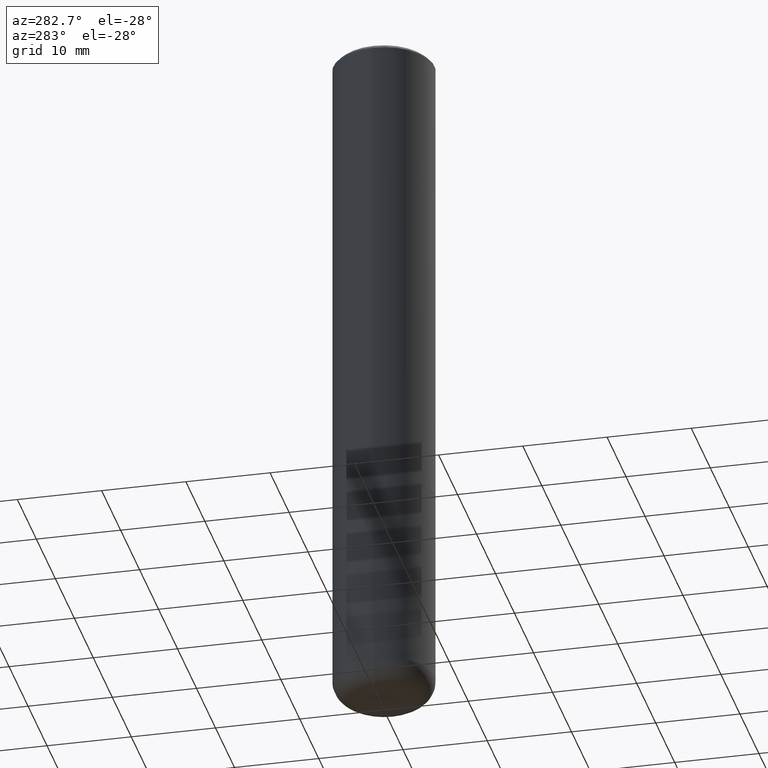
[diagram: clean part render]
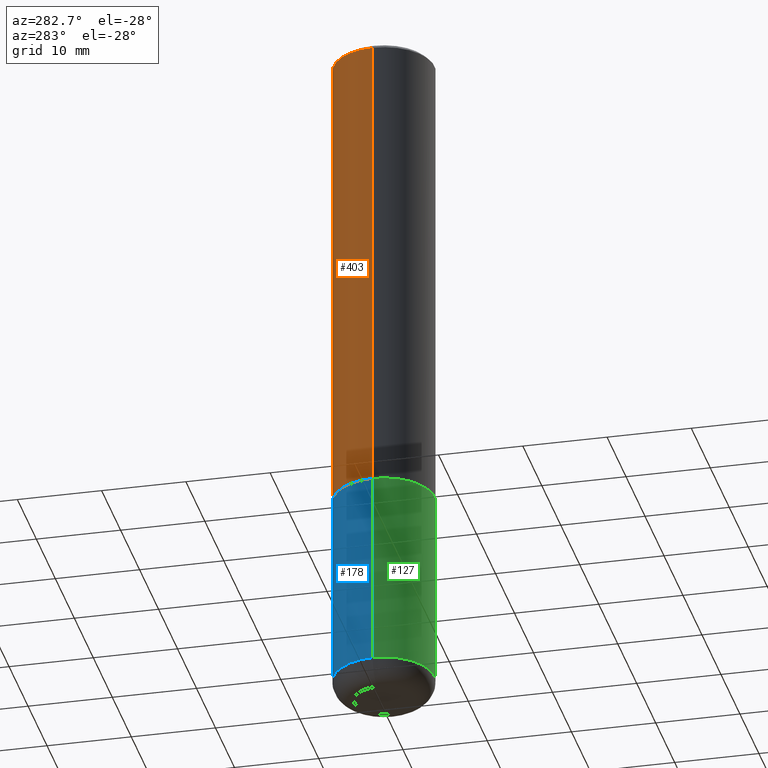
[diagram: same view with three faces highlighted in distinct colors, each labeled with its STEP entity id]
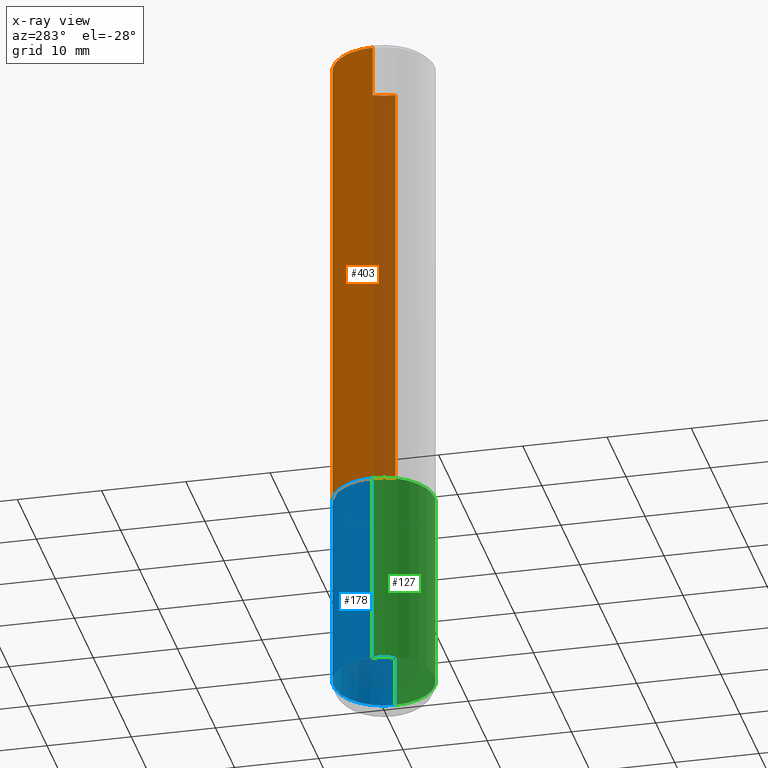
[diagram: x-ray of the same camera — body ghosted, the three highlighted faces saturated]
A machine part, auxiliary view with three faces highlighted in distinct colors.
The next image is the same camera in x-ray (body ghosted, the three faces saturated) — at least one of them is partly hidden behind the body in this view.
Their STEP definitions:

[orange] entity #403 — the highlighted cylindrical surface (partial cylindrical patch) has radius 5.9995 mm, axis along (-0, 0, 1).
#32 = LINE ( 'NONE', #94, #129 ) ;
#45 = CYLINDRICAL_SURFACE ( 'NONE', #215, 0.2362000000000001321 ) ;
#48 = VERTEX_POINT ( 'NONE', #92 ) ;
#65 = DIRECTION ( 'NONE',  ( -2.445468806185136877E-29, 3.491481338843145188E-15, 1.000000000000000000 ) ) ;
#66 = CARTESIAN_POINT ( 'NONE',  ( 0.2361999999999999933, -1.690279253850498771E-15, -0.02000000000000005246 ) ) ;
#77 = FACE_OUTER_BOUND ( 'NONE', #307, .T. ) ;
#81 = VERTEX_POINT ( 'NONE', #66 ) ;
#92 = CARTESIAN_POINT ( 'NONE',  ( -0.2361999999999999933, 1.579546157692633030E-15, -0.02000000000000005246 ) ) ;
#94 = CARTESIAN_POINT ( 'NONE',  ( 0.2362000000000001321, -1.649375784469497117E-15, 1.151752954443000789E-29 ) ) ;
#97 = EDGE_CURVE ( 'NONE', #354, #81, #32, .T. ) ;
#110 = DIRECTION ( 'NONE',  ( 1.000000000000000000, -6.982962677686266711E-15, 4.876176775795936353E-29 ) ) ;
#111 = ORIENTED_EDGE ( 'NONE', *, *, #97, .F. ) ;
#120 = VECTOR ( 'NONE', #65, 39.37007874015748143 ) ;
#128 = DIRECTION ( 'NONE',  ( -2.445468806185136877E-29, 3.491481338843145188E-15, 1.000000000000000000 ) ) ;
#129 = VECTOR ( 'NONE', #128, 39.37007874015748143 ) ;
#137 = CARTESIAN_POINT ( 'NONE',  ( 4.890937612370285420E-31, -6.982962677686308865E-17, -0.02000000000000005246 ) ) ;
#140 = EDGE_CURVE ( 'NONE', #354, #404, #273, .T. ) ;
#145 = CARTESIAN_POINT ( 'NONE',  ( -0.2362000000000002986, -2.272483767102600582E-15, -2.243100000000000094 ) ) ;
#171 = CARTESIAN_POINT ( 'NONE',  ( 0.000000000000000000, 0.000000000000000000, 0.000000000000000000 ) ) ;
#176 = ORIENTED_EDGE ( 'NONE', *, *, #203, .T. ) ;
#201 = ORIENTED_EDGE ( 'NONE', *, *, #140, .T. ) ;
#203 = EDGE_CURVE ( 'NONE', #404, #48, #414, .T. ) ;
#204 = CARTESIAN_POINT ( 'NONE',  ( 0.2362000000000002709, -9.481117575628559013E-15, -2.243100000000000094 ) ) ;
#215 = AXIS2_PLACEMENT_3D ( 'NONE', #171, #397, #110 ) ;
#242 = AXIS2_PLACEMENT_3D ( 'NONE', #137, #396, #362 ) ;
#261 = DIRECTION ( 'NONE',  ( -2.445468806185136597E-29, 3.491481338843145583E-15, 1.000000000000000000 ) ) ;
#273 = CIRCLE ( 'NONE', #328, 0.2362000000000002709 ) ;
#277 = ORIENTED_EDGE ( 'NONE', *, *, #399, .F. ) ;
#307 = EDGE_LOOP ( 'NONE', ( #201, #176, #277, #111 ) ) ;
#328 = AXIS2_PLACEMENT_3D ( 'NONE', #418, #261, #417 ) ;
#354 = VERTEX_POINT ( 'NONE', #204 ) ;
#362 = DIRECTION ( 'NONE',  ( 1.000000000000000000, -6.982962677686266711E-15, 0.000000000000000000 ) ) ;
#381 = CIRCLE ( 'NONE', #242, 0.2361999999999999933 ) ;
#385 = CARTESIAN_POINT ( 'NONE',  ( -0.2362000000000001321, 1.678301941865357577E-15, -1.161852468318209457E-29 ) ) ;
#396 = DIRECTION ( 'NONE',  ( -2.445468806185136597E-29, 3.491481338843145583E-15, 1.000000000000000000 ) ) ;
#397 = DIRECTION ( 'NONE',  ( -2.445468806185136597E-29, 3.491481338843145583E-15, 1.000000000000000000 ) ) ;
#399 = EDGE_CURVE ( 'NONE', #81, #48, #381, .T. ) ;
#403 = ADVANCED_FACE ( 'NONE', ( #77 ), #45, .T. ) ;
#404 = VERTEX_POINT ( 'NONE', #145 ) ;
#414 = LINE ( 'NONE', #385, #120 ) ;
#417 = DIRECTION ( 'NONE',  ( 1.000000000000000000, -6.982962677686269077E-15, 0.000000000000000000 ) ) ;
#418 = CARTESIAN_POINT ( 'NONE',  ( 5.485431079153880270E-29, -7.831741791159060910E-15, -2.243100000000000094 ) ) ;

[blue] entity #178 — the highlighted cylindrical surface (partial cylindrical patch) has radius 5.9995 mm, axis along (-0, 0, 1).
#24 = DIRECTION ( 'NONE',  ( -2.445468806185136597E-29, 3.491481338843145583E-15, 1.000000000000000000 ) ) ;
#26 = VECTOR ( 'NONE', #316, 39.37007874015748143 ) ;
#34 = EDGE_CURVE ( 'NONE', #76, #248, #207, .T. ) ;
#36 = VECTOR ( 'NONE', #229, 39.37007874015748143 ) ;
#39 = ORIENTED_EDGE ( 'NONE', *, *, #34, .T. ) ;
#63 = CARTESIAN_POINT ( 'NONE',  ( -0.2361999999999999933, -7.772090597981385734E-15, -2.244100000000000428 ) ) ;
#76 = VERTEX_POINT ( 'NONE', #99 ) ;
#79 = AXIS2_PLACEMENT_3D ( 'NONE', #157, #295, #390 ) ;
#88 = EDGE_CURVE ( 'NONE', #76, #146, #155, .T. ) ;
#96 = CYLINDRICAL_SURFACE ( 'NONE', #79, 0.2361999999999999933 ) ;
#99 = CARTESIAN_POINT ( 'NONE',  ( 0.2362000000000002153, -1.271492759166507844E-14, -3.169299999999999784 ) ) ;
#101 = EDGE_CURVE ( 'NONE', #248, #209, #322, .T. ) ;
#109 = DIRECTION ( 'NONE',  ( 1.000000000000000000, -6.982962677686264344E-15, 0.000000000000000000 ) ) ;
#126 = CARTESIAN_POINT ( 'NONE',  ( 0.2361999999999999933, -9.484609056967400443E-15, -2.244100000000000428 ) ) ;
#141 = ORIENTED_EDGE ( 'NONE', *, *, #101, .T. ) ;
#146 = VERTEX_POINT ( 'NONE', #126 ) ;
#155 = LINE ( 'NONE', #262, #36 ) ;
#157 = CARTESIAN_POINT ( 'NONE',  ( 0.000000000000000000, 0.000000000000000000, 0.000000000000000000 ) ) ;
#178 = ADVANCED_FACE ( 'NONE', ( #225 ), #96, .T. ) ;
#182 = CARTESIAN_POINT ( 'NONE',  ( 7.750424287442554569E-29, -1.106555180719558034E-14, -3.169299999999999784 ) ) ;
#207 = CIRCLE ( 'NONE', #221, 0.2362000000000000210 ) ;
#209 = VERTEX_POINT ( 'NONE', #63 ) ;
#221 = AXIS2_PLACEMENT_3D ( 'NONE', #182, #24, #109 ) ;
#225 = FACE_OUTER_BOUND ( 'NONE', #406, .T. ) ;
#229 = DIRECTION ( 'NONE',  ( -2.445468806185136877E-29, 3.491481338843145188E-15, 1.000000000000000000 ) ) ;
#233 = CIRCLE ( 'NONE', #286, 0.2361999999999999933 ) ;
#236 = ORIENTED_EDGE ( 'NONE', *, *, #291, .F. ) ;
#237 = CARTESIAN_POINT ( 'NONE',  ( 5.487876547960065873E-29, -7.835233272497903917E-15, -2.244100000000000428 ) ) ;
#248 = VERTEX_POINT ( 'NONE', #329 ) ;
#262 = CARTESIAN_POINT ( 'NONE',  ( 0.2361999999999999933, -1.649375784469496131E-15, 1.151752954443000088E-29 ) ) ;
#264 = CARTESIAN_POINT ( 'NONE',  ( -0.2361999999999999933, 1.678301941865356591E-15, -1.161852468318208757E-29 ) ) ;
#286 = AXIS2_PLACEMENT_3D ( 'NONE', #237, #391, #358 ) ;
#291 = EDGE_CURVE ( 'NONE', #146, #209, #233, .T. ) ;
#295 = DIRECTION ( 'NONE',  ( -2.445468806185136597E-29, 3.491481338843145583E-15, 1.000000000000000000 ) ) ;
#301 = ORIENTED_EDGE ( 'NONE', *, *, #88, .F. ) ;
#316 = DIRECTION ( 'NONE',  ( -2.445468806185136877E-29, 3.491481338843145188E-15, 1.000000000000000000 ) ) ;
#322 = LINE ( 'NONE', #264, #26 ) ;
#329 = CARTESIAN_POINT ( 'NONE',  ( -0.2362000000000002153, -9.387249865330223945E-15, -3.169299999999999784 ) ) ;
#358 = DIRECTION ( 'NONE',  ( 1.000000000000000000, -6.982962677686269077E-15, 0.000000000000000000 ) ) ;
#390 = DIRECTION ( 'NONE',  ( 1.000000000000000000, -6.982962677686266711E-15, 4.876176775795936353E-29 ) ) ;
#391 = DIRECTION ( 'NONE',  ( -2.445468806185136597E-29, 3.491481338843145583E-15, 1.000000000000000000 ) ) ;
#406 = EDGE_LOOP ( 'NONE', ( #39, #141, #236, #301 ) ) ;

[green] entity #127 — the highlighted cylindrical surface (partial cylindrical patch) has radius 5.9995 mm, axis along (-0, 0, 1).
#26 = VECTOR ( 'NONE', #316, 39.37007874015748143 ) ;
#31 = DIRECTION ( 'NONE',  ( 1.000000000000000000, -6.982962677686266711E-15, 4.876176775795936353E-29 ) ) ;
#36 = VECTOR ( 'NONE', #229, 39.37007874015748143 ) ;
#63 = CARTESIAN_POINT ( 'NONE',  ( -0.2361999999999999933, -7.772090597981385734E-15, -2.244100000000000428 ) ) ;
#71 = DIRECTION ( 'NONE',  ( 1.000000000000000000, -6.982962677686264344E-15, 0.000000000000000000 ) ) ;
#76 = VERTEX_POINT ( 'NONE', #99 ) ;
#80 = CARTESIAN_POINT ( 'NONE',  ( 5.487876547960065873E-29, -7.835233272497903917E-15, -2.244100000000000428 ) ) ;
#88 = EDGE_CURVE ( 'NONE', #76, #146, #155, .T. ) ;
#98 = CYLINDRICAL_SURFACE ( 'NONE', #168, 0.2361999999999999933 ) ;
#99 = CARTESIAN_POINT ( 'NONE',  ( 0.2362000000000002153, -1.271492759166507844E-14, -3.169299999999999784 ) ) ;
#101 = EDGE_CURVE ( 'NONE', #248, #209, #322, .T. ) ;
#126 = CARTESIAN_POINT ( 'NONE',  ( 0.2361999999999999933, -9.484609056967400443E-15, -2.244100000000000428 ) ) ;
#127 = ADVANCED_FACE ( 'NONE', ( #388 ), #98, .T. ) ;
#146 = VERTEX_POINT ( 'NONE', #126 ) ;
#147 = EDGE_LOOP ( 'NONE', ( #214, #278, #361, #368 ) ) ;
#155 = LINE ( 'NONE', #262, #36 ) ;
#162 = CARTESIAN_POINT ( 'NONE',  ( 0.000000000000000000, 0.000000000000000000, 0.000000000000000000 ) ) ;
#168 = AXIS2_PLACEMENT_3D ( 'NONE', #162, #290, #31 ) ;
#208 = DIRECTION ( 'NONE',  ( -2.445468806185136597E-29, 3.491481338843145583E-15, 1.000000000000000000 ) ) ;
#209 = VERTEX_POINT ( 'NONE', #63 ) ;
#213 = AXIS2_PLACEMENT_3D ( 'NONE', #80, #359, #297 ) ;
#214 = ORIENTED_EDGE ( 'NONE', *, *, #101, .F. ) ;
#229 = DIRECTION ( 'NONE',  ( -2.445468806185136877E-29, 3.491481338843145188E-15, 1.000000000000000000 ) ) ;
#241 = CARTESIAN_POINT ( 'NONE',  ( 7.750424287442554569E-29, -1.106555180719558034E-14, -3.169299999999999784 ) ) ;
#248 = VERTEX_POINT ( 'NONE', #329 ) ;
#253 = EDGE_CURVE ( 'NONE', #248, #76, #345, .T. ) ;
#262 = CARTESIAN_POINT ( 'NONE',  ( 0.2361999999999999933, -1.649375784469496131E-15, 1.151752954443000088E-29 ) ) ;
#264 = CARTESIAN_POINT ( 'NONE',  ( -0.2361999999999999933, 1.678301941865356591E-15, -1.161852468318208757E-29 ) ) ;
#278 = ORIENTED_EDGE ( 'NONE', *, *, #253, .T. ) ;
#290 = DIRECTION ( 'NONE',  ( -2.445468806185136597E-29, 3.491481338843145583E-15, 1.000000000000000000 ) ) ;
#297 = DIRECTION ( 'NONE',  ( 1.000000000000000000, -6.982962677686269077E-15, 0.000000000000000000 ) ) ;
#314 = EDGE_CURVE ( 'NONE', #209, #146, #393, .T. ) ;
#316 = DIRECTION ( 'NONE',  ( -2.445468806185136877E-29, 3.491481338843145188E-15, 1.000000000000000000 ) ) ;
#322 = LINE ( 'NONE', #264, #26 ) ;
#329 = CARTESIAN_POINT ( 'NONE',  ( -0.2362000000000002153, -9.387249865330223945E-15, -3.169299999999999784 ) ) ;
#345 = CIRCLE ( 'NONE', #374, 0.2362000000000000210 ) ;
#359 = DIRECTION ( 'NONE',  ( -2.445468806185136597E-29, 3.491481338843145583E-15, 1.000000000000000000 ) ) ;
#361 = ORIENTED_EDGE ( 'NONE', *, *, #88, .T. ) ;
#368 = ORIENTED_EDGE ( 'NONE', *, *, #314, .F. ) ;
#374 = AXIS2_PLACEMENT_3D ( 'NONE', #241, #208, #71 ) ;
#388 = FACE_OUTER_BOUND ( 'NONE', #147, .T. ) ;
#393 = CIRCLE ( 'NONE', #213, 0.2361999999999999933 ) ;